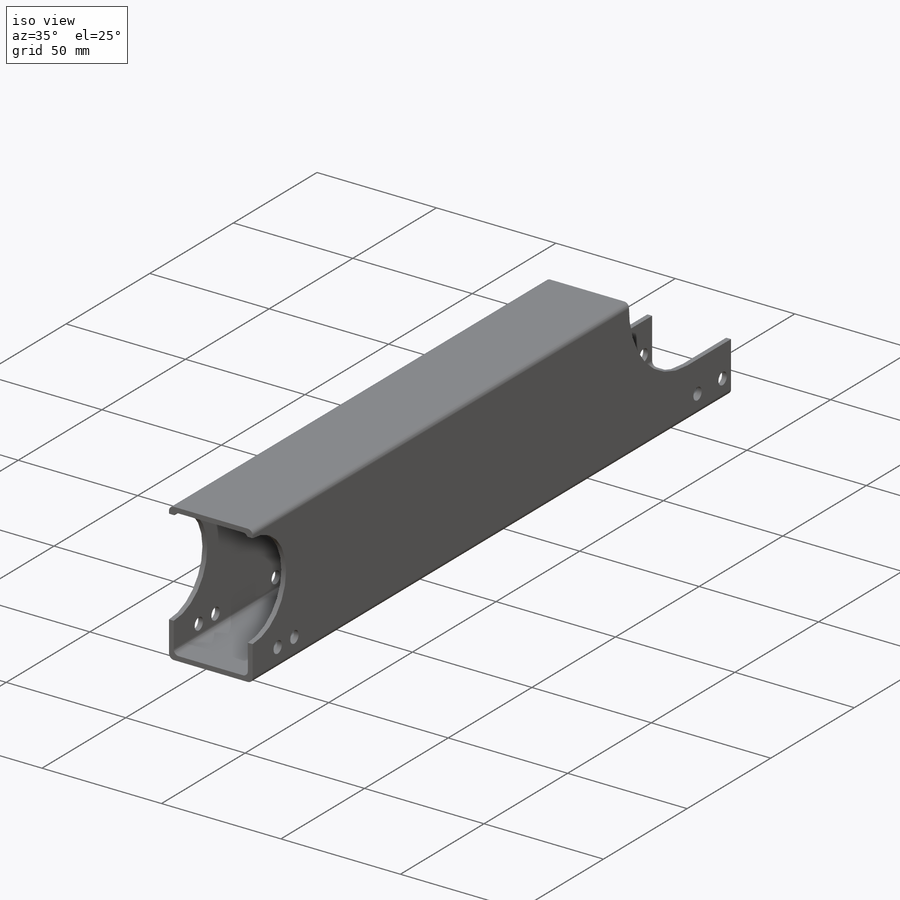
[diagram: iso view]
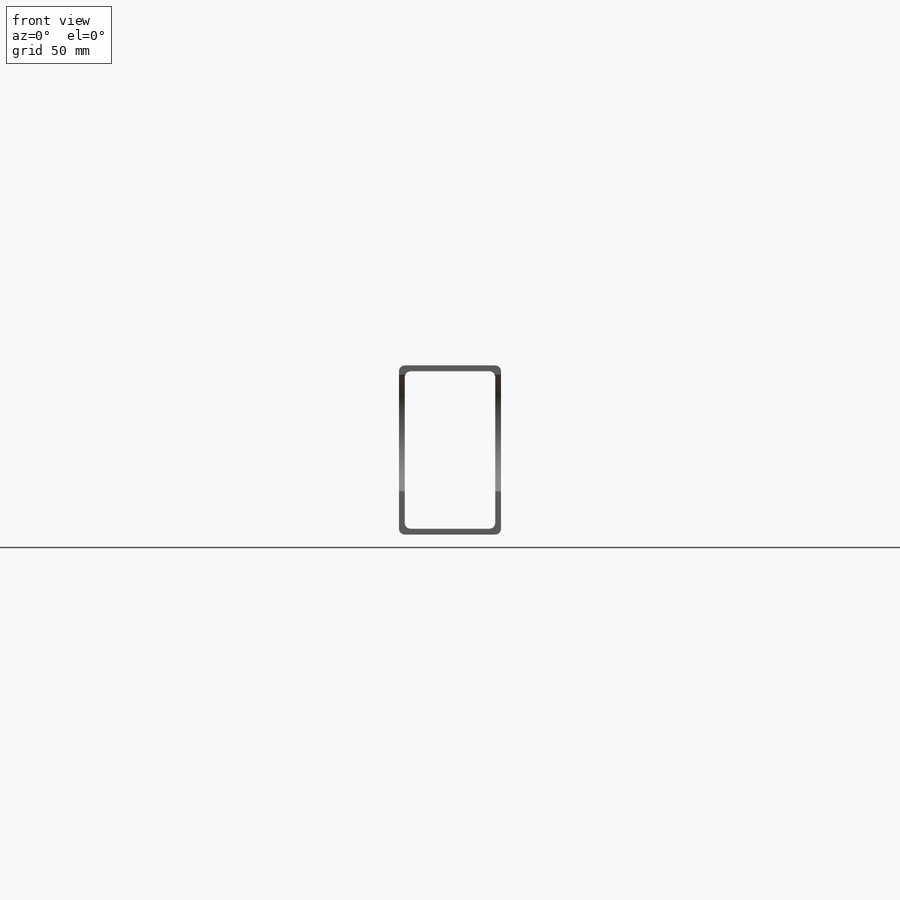
[diagram: front view]
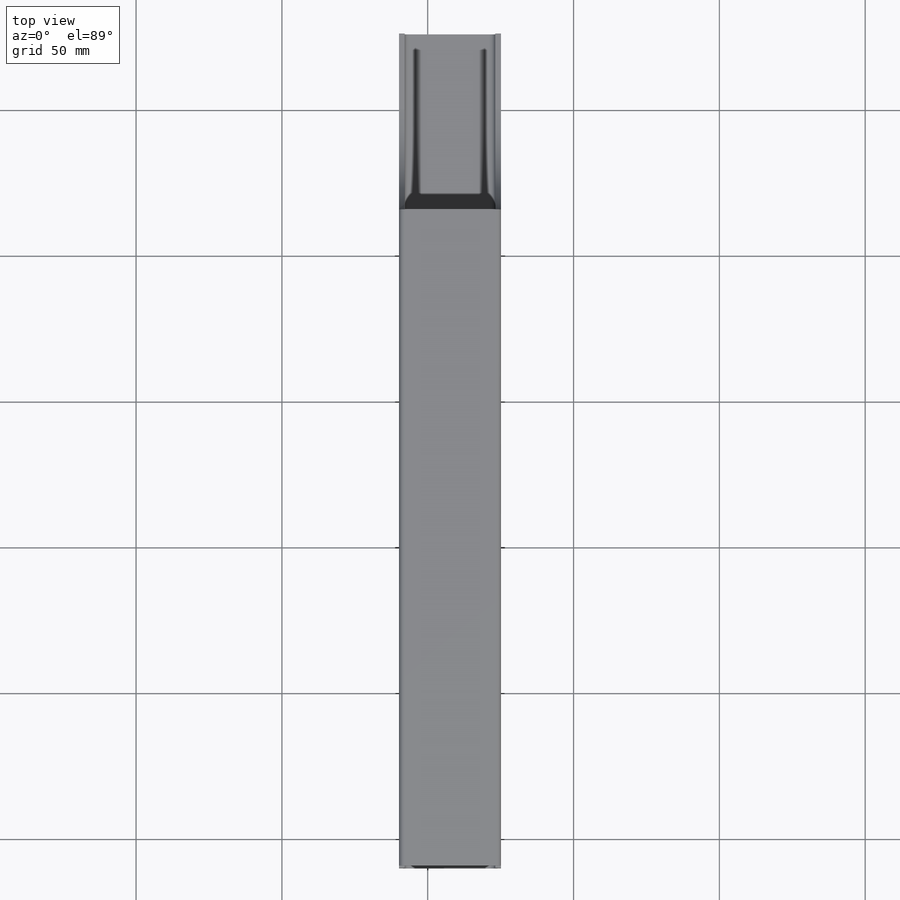
[diagram: top view]
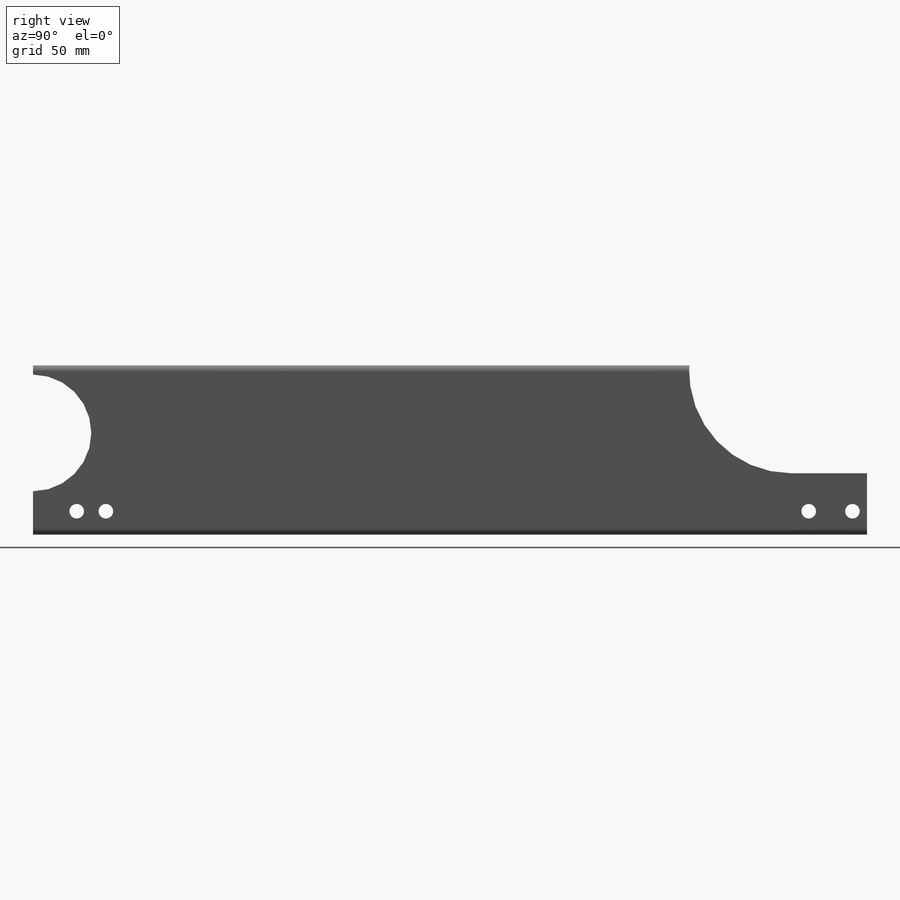
[diagram: right view]
SOLIDWORKS PART (.sldprt)
format: sldprt  version: not decoded by parser v0  size: 282,112 bytes
history: native  units: mm
features: sketch x6, fillet x5, cut_extrude x4, extrude x2, material x1 (+14 scaffold rows collapsed)
feature tree (32):
  scaffold x14  (default folders/planes/origin — collapsed)
  material  "Material <not specified>"
  sketch  "Sketch1"  dims[c1.D1=35.0mm c1.D2=58.0mm c1.D3=26.0mm c1.D4=2.0mm c1.D5=26.0mm c1.D6=2.0mm c2.D3=2.0mm c2.D5=2.0mm]
  extrude  "Extrude1"  Depth=260mm
  fillet  "Fillet1"  Radius=2mm
  sketch  "Sketch2"  dims[D2=5.0mm D3=5.0mm D1=10.0mm D4=15.0mm D5=8.0mm D6=8.0mm]
  cut_extrude  "Extrude2"  Depth=203.8mm
  sketch  "Sketch3"  dims[c1.D1=5.0mm c1.D3=5.0mm c1.D2=8.0mm c2.D3=36.0mm c2.D4=5.0mm]
  cut_extrude  "Extrude3"  Depth=10mm
  sketch  "Sketch5"
  extrude  "Extrude5"  Depth=26mm
  fillet  "Fillet6"  Radius=2mm
  fillet  "Fillet7"  Radius=2mm
  fillet  "Fillet8"  Radius=2mm
  fillet  "Fillet9"  Radius=2mm
  sketch  "Sketch7"  dims[D5=5.0mm D6=5.0mm D1=8.0mm D2=8.0mm D3=15.0mm D4=5.0mm]
  cut_extrude  "Extrude6"  [1 undecoded]
  sketch  "Sketch8"  dims[D1=40.0mm D2=40.0mm]
  cut_extrude  "Extrude7"  [1 undecoded]
decode coverage: 14 of 17 modeling features carry decoded parameters
note: 2 parameter values undecoded
note: suppression state not decoded; provenance and decode notes live in map.json
